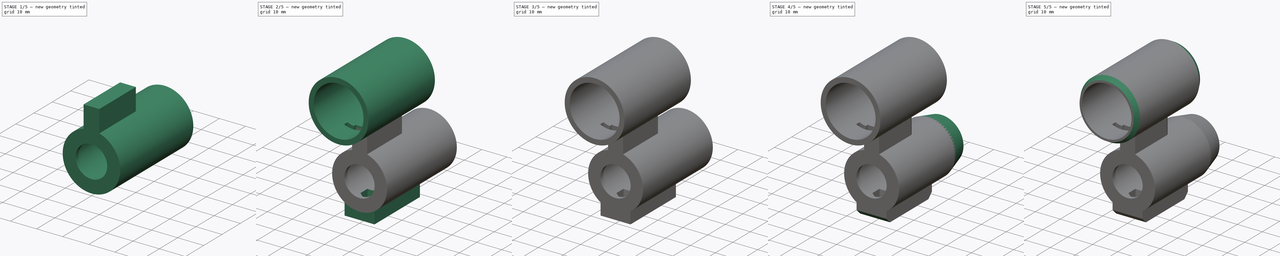
[diagram: build sequence overview — one tinted view per stage of 5, left to right]
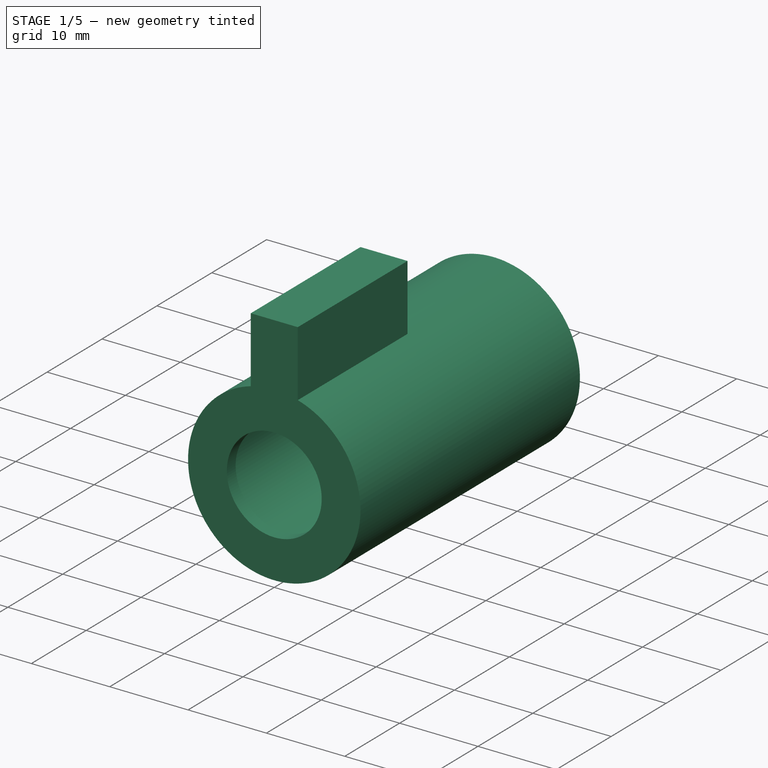
[diagram: stage 1 of 5 — iso view after this stage's code; geometry added in this stage tinted green]
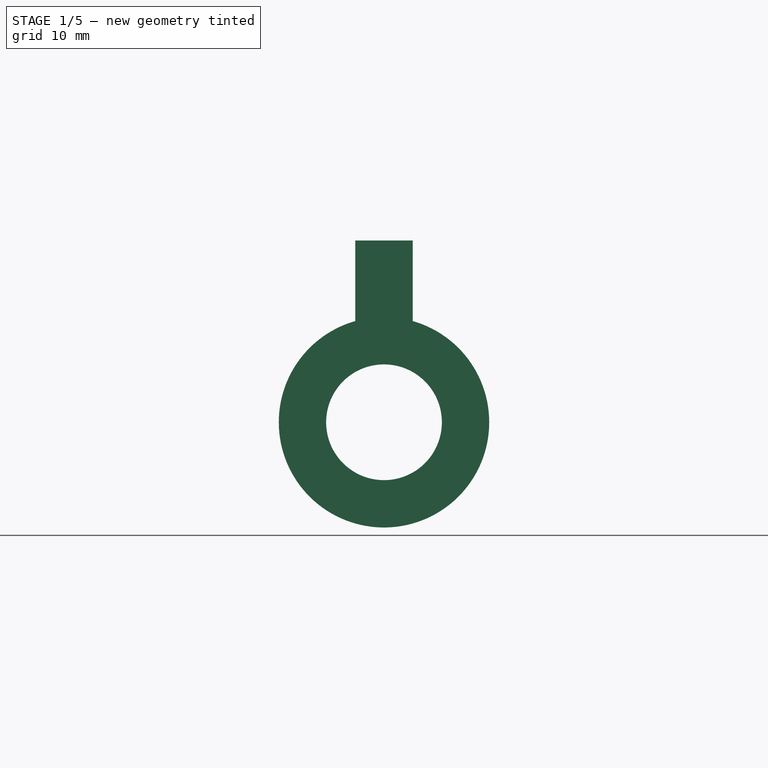
[diagram: stage 1 of 5 — front view after this stage's code; geometry added in this stage tinted green]
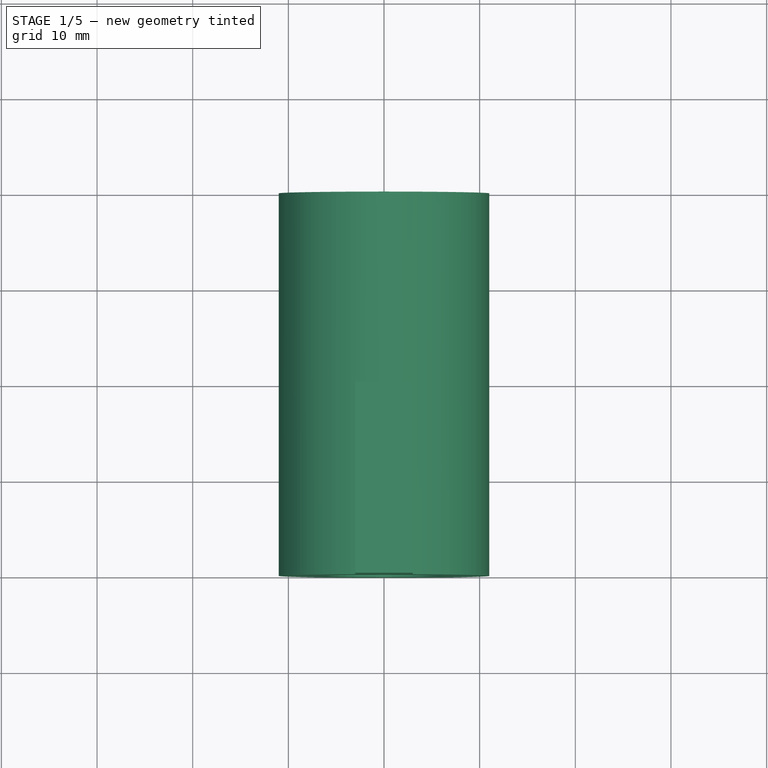
[diagram: stage 1 of 5 — top view after this stage's code; geometry added in this stage tinted green]
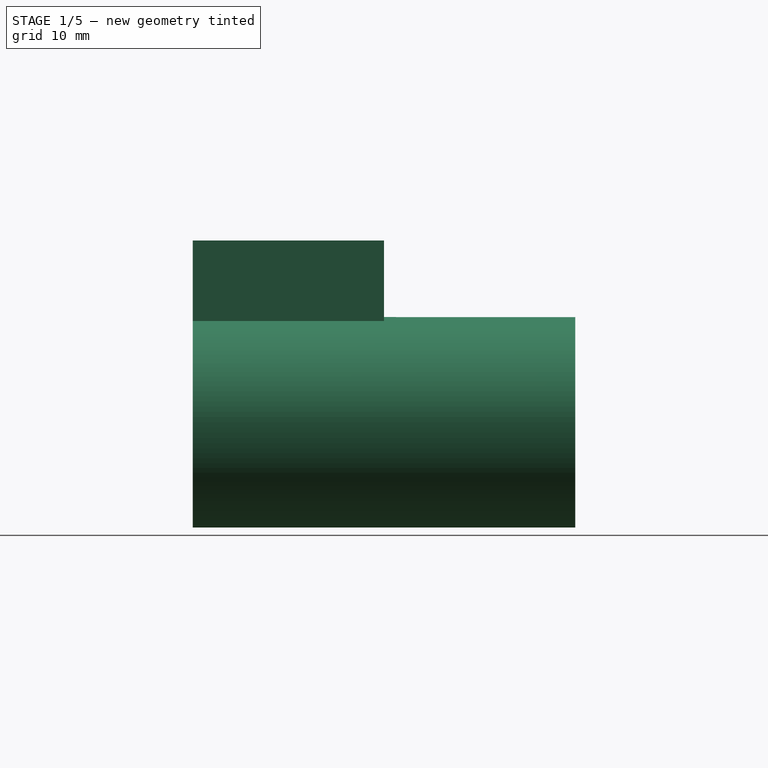
[diagram: stage 1 of 5 — right view after this stage's code; geometry added in this stage tinted green]
FCSTD DOCUMENT  (FreeCAD 0.20RUnknown)
Label: Mirino
License: All rights reserved
LicenseURL: http://en.wikipedia.org/wiki/All_rights_reserved
objects: Sketcher::SketchObject×10, PartDesign::Pad×7, PartDesign::Chamfer×6, PartDesign::Pocket×3, PartDesign::Fillet×1, PartDesign::Body×1
note: 45 computed .brp shape members not serialized (recipe doc carries the construction recipe); baked Part::Feature solids carry a one-line shape summary decoded from their .brp

FEATURE [Sketcher::SketchObject] Sketch  label="cerchio_12"
  FullyConstrained = true
  MapMode = 5
  Placement = pos=(0,0,0) rot=(1,0,0;1.5708rad)
  Support = -> [XZ_Plane]
  sketch-geometry (2):
    g0: Circle CenterX=0 CenterY=0 CenterZ=0 NormalX=0 NormalY=0 NormalZ=1 AngleXU=0 Radius=6.05
    g1: Circle CenterX=0 CenterY=0 CenterZ=0 NormalX=0 NormalY=0 NormalZ=1 AngleXU=0 Radius=8.25
  constraints (4):
    c: Coincident(g0,g-1)
    c: Diameter(g0) = 12.1
    c: Coincident(g1,g0)
    c: Diameter(g1) = 16.5
FEATURE [PartDesign::Pad] Pad  label="cerchio_013"
  Direction = (0,-1,2e-16)
  Length = 1.6
  Length2 = 10
  Placement = pos=(0,0,0) rot=(1,0,0;1.5708rad)
  Profile = -> Sketch
  ReferenceAxis = -> Sketch [N_Axis]
  Reversed = true
  Type = 0
FEATURE [Sketcher::SketchObject] Sketch001  label="cerchio_014"
  FullyConstrained = true
  MapMode = 5
  Placement = pos=(0,0,0) rot=(1,0,0;1.5708rad)
  Support = -> [XZ_Plane]
  sketch-geometry (2):
    g0: Circle CenterX=0 CenterY=0 CenterZ=0 NormalX=0 NormalY=0 NormalZ=1 AngleXU=0 Radius=8.075
    g1: Circle CenterX=0 CenterY=0 CenterZ=0 NormalX=0 NormalY=0 NormalZ=1 AngleXU=0 Radius=11
  constraints (4):
    c: Coincident(g0,g-1)
    c: Diameter(g0) = 16.15
    c: Coincident(g1,g0)
    c: Diameter(g1) = 22
FEATURE [PartDesign::Pad] Pad001  label="cerchio_16"
  BaseFeature = -> Pad
  Direction = (0,-1,2e-16)
  Length = 40
  Length2 = 10
  Placement = pos=(0,0,0) rot=(1,0,0;1.5708rad)
  Profile = -> Sketch001
  ReferenceAxis = -> Sketch001 [N_Axis]
  Reversed = true
  Type = 0
FEATURE [Sketcher::SketchObject] Sketch002  label="cerchio_sopra"
  FullyConstrained = true
  MapMode = 5
  Placement = pos=(0,0,0) rot=(1,0,0;1.5708rad)
  Support = -> [Pad001]
  sketch-geometry (2):
    g0: Circle CenterX=0 CenterY=30 CenterZ=0 NormalX=0 NormalY=0 NormalZ=1 AngleXU=0 Radius=10
    g1: Circle CenterX=0 CenterY=30 CenterZ=0 NormalX=0 NormalY=0 NormalZ=1 AngleXU=0 Radius=12
  constraints (5):
    c: PointOnObject(g0,g-2)
    c: Diameter(g0) = 20
    c: DistanceY(g-1,g0) = 30
    c: Coincident(g1,g0)
    c: Diameter(g1) = 24
FEATURE [Sketcher::SketchObject] Sketch003  label="supporto"
  FullyConstrained = true
  MapMode = 5
  Placement = pos=(0,0,0) rot=(1,0,0;1.5708rad)
  Support = -> [Pad001]
  sketch-geometry (4):
    g0: LineSegment StartX=-3 StartY=19 StartZ=0 EndX=3 EndY=19 EndZ=0
    g1: LineSegment StartX=3 StartY=19 StartZ=0 EndX=3 EndY=9 EndZ=0
    g2: LineSegment StartX=3 StartY=9 StartZ=0 EndX=-3 EndY=9 EndZ=0
    g3: LineSegment StartX=-3 StartY=9 StartZ=0 EndX=-3 EndY=19 EndZ=0
  constraints (12):
    c: Coincident(g0,g1)
    c: Coincident(g1,g2)
    c: Coincident(g2,g3)
    c: Coincident(g3,g0)
    c: Horizontal(g0)
    c: Horizontal(g2)
    c: Vertical(g1)
    c: Vertical(g3)
    c: DistanceX(g0,g0) = 6
    c: DistanceX(g0,g-1) = 3
    c: DistanceY(g1,g1) = 10
    c: DistanceY(g-1,g2) = 9
FEATURE [PartDesign::Pad] Pad002  label="supporto001"
  BaseFeature = -> Pad001
  Direction = (0,-1,2e-16)
  Length = 20
  Length2 = 10
  Placement = pos=(0,0,0) rot=(1,0,0;1.5708rad)
  Profile = -> Sketch003
  ReferenceAxis = -> Sketch003 [N_Axis]
  Reversed = true
  Type = 0
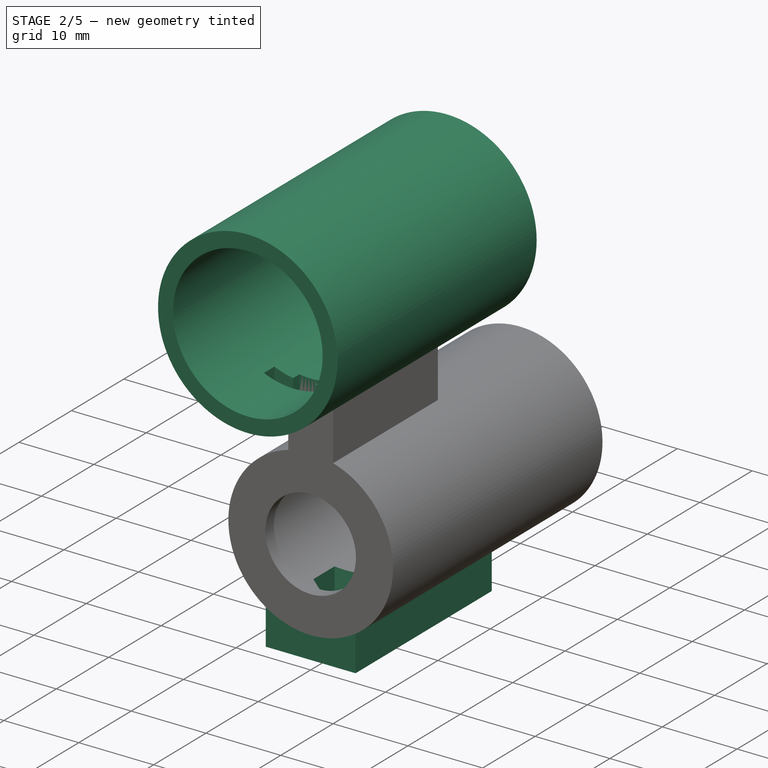
[diagram: stage 2 of 5 — iso view after this stage's code; geometry added in this stage tinted green]
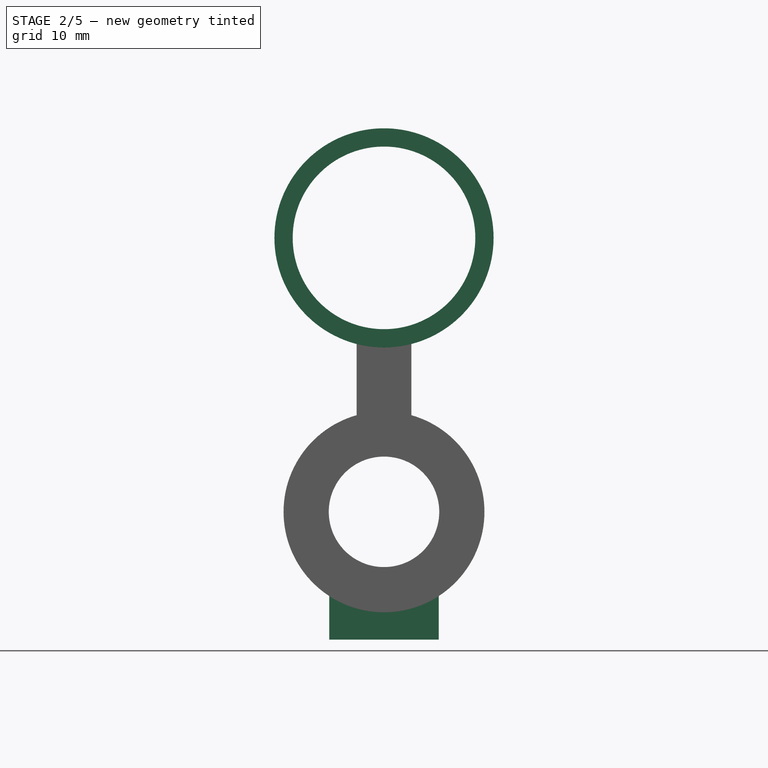
[diagram: stage 2 of 5 — front view after this stage's code; geometry added in this stage tinted green]
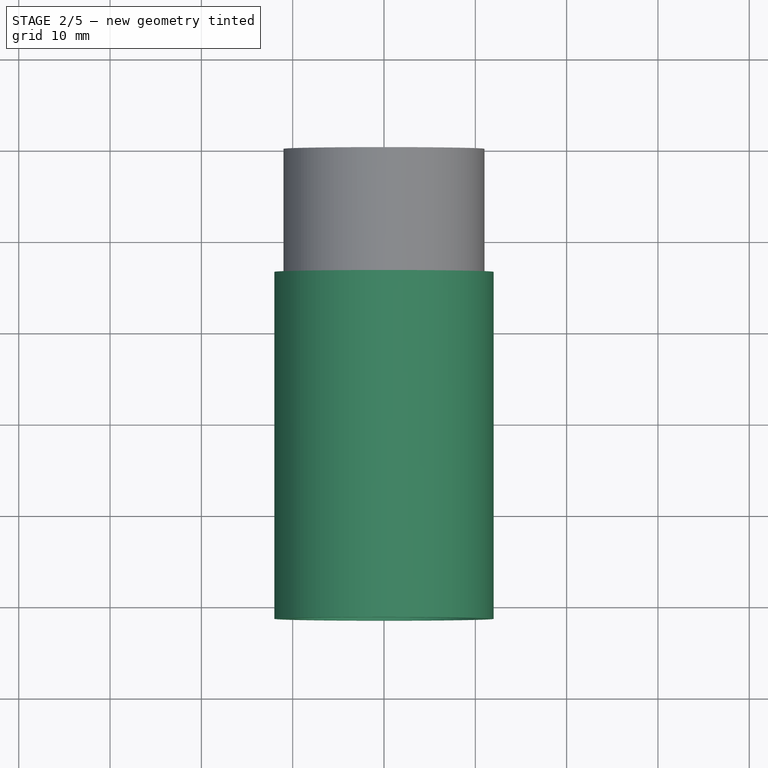
[diagram: stage 2 of 5 — top view after this stage's code; geometry added in this stage tinted green]
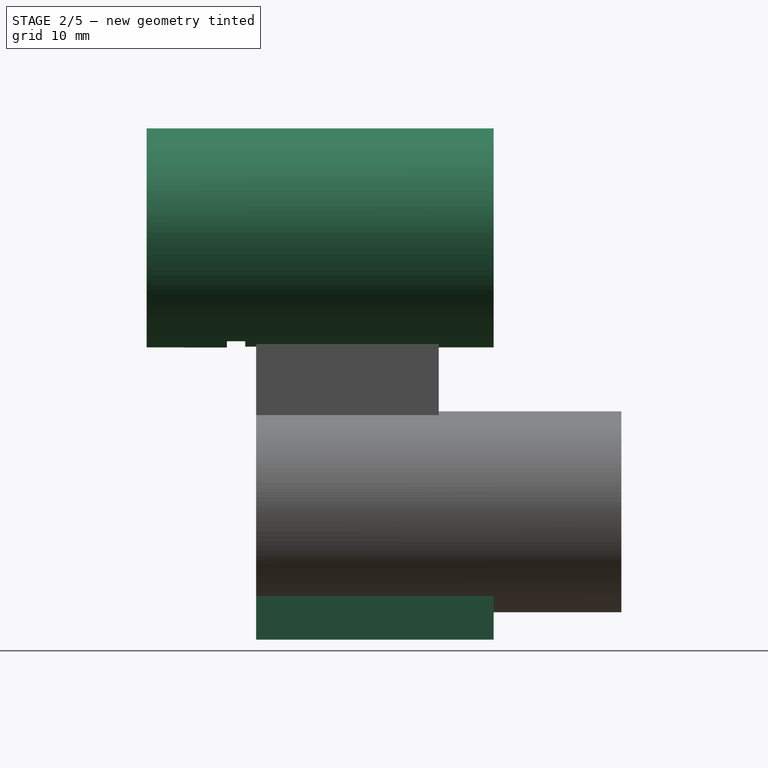
[diagram: stage 2 of 5 — right view after this stage's code; geometry added in this stage tinted green]
FEATURE [PartDesign::Pad] Pad003  label="cerchio_sopra001"
  BaseFeature = -> Pad002
  Direction = (0,-1,2e-16)
  Length = 12
  Length2 = 26
  Placement = pos=(0,0,0) rot=(1,0,0;1.5708rad)
  Profile = -> Sketch002
  ReferenceAxis = -> Sketch002 [N_Axis]
  Type = 4
FEATURE [Sketcher::SketchObject] Sketch004  label="fresatura"
  FullyConstrained = true
  MapMode = 5
  Support = -> [XY_Plane]
  sketch-geometry (8):
    g0: LineSegment StartX=-1.5 StartY=0 StartZ=0 EndX=1.5 EndY=0 EndZ=0
    g1: LineSegment StartX=1.5 StartY=0 StartZ=0 EndX=1.5 EndY=-1.2 EndZ=0
    g2: LineSegment StartX=-1.5 StartY=-1.2 StartZ=0 EndX=-1.5 EndY=0 EndZ=0
    g3: LineSegment StartX=4 StartY=-1.2 StartZ=0 EndX=4 EndY=-3.2 EndZ=0
    g4: LineSegment StartX=4 StartY=-3.2 StartZ=0 EndX=-4 EndY=-3.2 EndZ=0
    g5: LineSegment StartX=-4 StartY=-3.2 StartZ=0 EndX=-4 EndY=-1.2 EndZ=0
    g6: LineSegment StartX=-4 StartY=-1.2 StartZ=0 EndX=-1.5 EndY=-1.2 EndZ=0
    g7: LineSegment StartX=1.5 StartY=-1.2 StartZ=0 EndX=4 EndY=-1.2 EndZ=0
  constraints (24):
    c: Coincident(g0,g1)
    c: Coincident(g2,g0)
    c: Horizontal(g0)
    c: Vertical(g1)
    c: Vertical(g2)
    c: PointOnObject(g0,g-1)
    c: Coincident(g3,g4)
    c: Coincident(g4,g5)
    c: Horizontal(g4)
    c: Vertical(g3)
    c: Vertical(g5)
    c: Coincident(g6,g5)
    c: Coincident(g6,g2)
    c: Horizontal(g6)
    c: Coincident(g7,g1)
    c: Coincident(g7,g3)
    c: DistanceX(g0,g0) = 3
    c: DistanceY(g1,g1) = 1.2
    c: DistanceX(g4,g4) = 8
    c: Equal(g1,g2)
    c: Equal(g6,g7)
    c: DistanceY(g3,g3) = 2
    c: Horizontal(g7)
    c: DistanceX(g-1,g3) = 4
FEATURE [PartDesign::Pocket] Pocket  label="fresatura001"
  BaseFeature = -> Pad003
  Direction = (0,0,-1)
  Length = 26
  Length2 = 5
  Placement = pos=(0,0,0) rot=(1,0,0;1.5708rad)
  Profile = -> Sketch004
  ReferenceAxis = -> Sketch004 [N_Axis]
  Reversed = true
  Type = 0
FEATURE [Sketcher::SketchObject] Sketch005  label="supporto_dadi001"
  FullyConstrained = true
  MapMode = 5
  Placement = pos=(0,0,0) rot=(1,0,0;1.5708rad)
  Support = -> [Pocket]
  sketch-geometry (4):
    g0: LineSegment StartX=-6 StartY=-9 StartZ=0 EndX=6 EndY=-9 EndZ=0
    g1: LineSegment StartX=6 StartY=-9 StartZ=0 EndX=6 EndY=-14 EndZ=0
    g2: LineSegment StartX=6 StartY=-14 StartZ=0 EndX=-6 EndY=-14 EndZ=0
    g3: LineSegment StartX=-6 StartY=-14 StartZ=0 EndX=-6 EndY=-9 EndZ=0
  constraints (12):
    c: Coincident(g0,g1)
    c: Coincident(g1,g2)
    c: Coincident(g2,g3)
    c: Coincident(g3,g0)
    c: Horizontal(g0)
    c: Horizontal(g2)
    c: Vertical(g1)
    c: Vertical(g3)
    c: DistanceX(g0,g0) = 12
    c: DistanceY(g1,g1) = 5
    c: DistanceY(g0,g-1) = 9
    c: DistanceX(g-1,g0) = 6
FEATURE [PartDesign::Pad] Pad004  label="supporto_dadi"
  BaseFeature = -> Pocket
  Direction = (0,-1,2e-16)
  Length = 26
  Length2 = 10
  Placement = pos=(0,0,0) rot=(1,0,0;1.5708rad)
  Profile = -> Sketch005
  ReferenceAxis = -> Sketch005 [N_Axis]
  Reversed = true
  Type = 0
FEATURE [Sketcher::SketchObject] Sketch006  label="dado_1"
  FullyConstrained = true
  MapMode = 5
  Placement = pos=(0,-3.1e-15,-14) rot=(1,0,0;3.14159rad)
  Support = -> [Pad004]
  sketch-geometry (7):
    g0: LineSegment StartX=3.5 StartY=-9.56218 StartZ=0 EndX=3.5 EndY=-5.52073 EndZ=0
    g1: LineSegment StartX=3.5 StartY=-5.52073 StartZ=0 EndX=0 EndY=-3.5 EndZ=0
    g2: LineSegment StartX=0 StartY=-3.5 StartZ=0 EndX=-3.5 EndY=-5.52073 EndZ=0
    g3: LineSegment StartX=-3.5 StartY=-5.52073 StartZ=0 EndX=-3.5 EndY=-9.56218 EndZ=0
    g4: LineSegment StartX=-3.5 StartY=-9.56218 StartZ=0 EndX=0 EndY=-11.5829 EndZ=0
    g5: LineSegment StartX=0 StartY=-11.5829 StartZ=0 EndX=3.5 EndY=-9.56218 EndZ=0
    g6: Circle CenterX=0 CenterY=-7.54145 CenterZ=0 NormalX=0 NormalY=0 NormalZ=1 AngleXU=0 Radius=4.04145
  constraints (17):
    c: Coincident(g0,g1)
    c: Coincident(g1,g2)
    c: Coincident(g2,g3)
    c: Coincident(g3,g4)
    c: Coincident(g4,g5)
    c: Coincident(g5,g0)
    c: Equal(g0, g1-g5) x5
    c: PointOnObject(g0,g6)
    c: PointOnObject(g1,g6)
    c: PointOnObject(g2,g6)
    c: PointOnObject(g3,g6)
    c: PointOnObject(g4,g6)
    c: PointOnObject(g5,g6)
    c: PointOnObject(g6,g-2)
    c: Vertical(g0)
    c: DistanceY(g1,g-1) = 3.5
    c: DistanceX(g-1,g0) = 3.5
FEATURE [PartDesign::Pocket] Pocket001  label="dado_002"
  BaseFeature = -> Pad004
  Direction = (0,2e-16,1)
  Length = 8
  Length2 = 5
  Placement = pos=(0,0,0) rot=(1,0,0;1.5708rad)
  Profile = -> Sketch006
  ReferenceAxis = -> Sketch006 [N_Axis]
  Type = 0
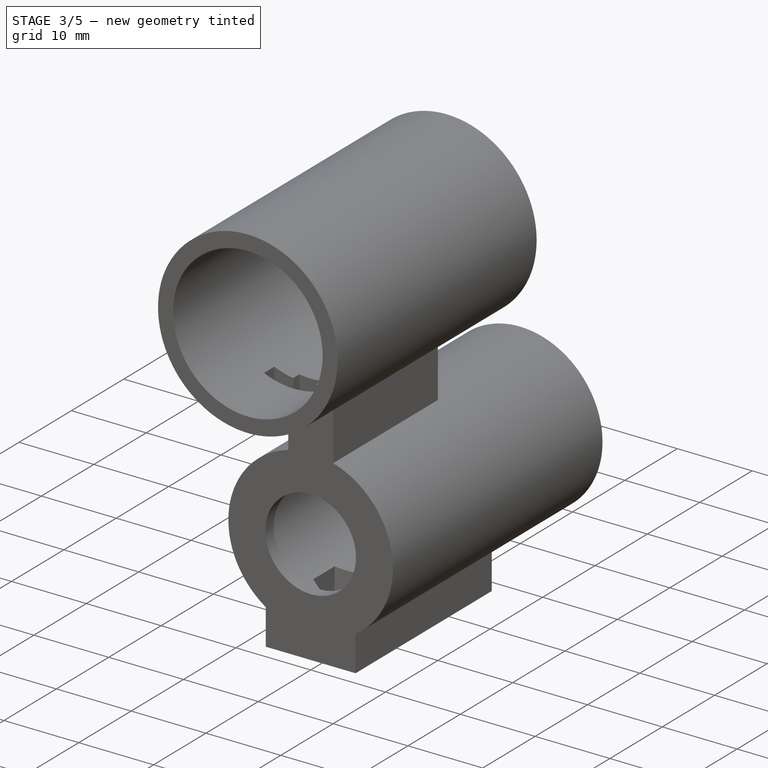
[diagram: stage 3 of 5 — iso view after this stage's code; geometry added in this stage tinted green]
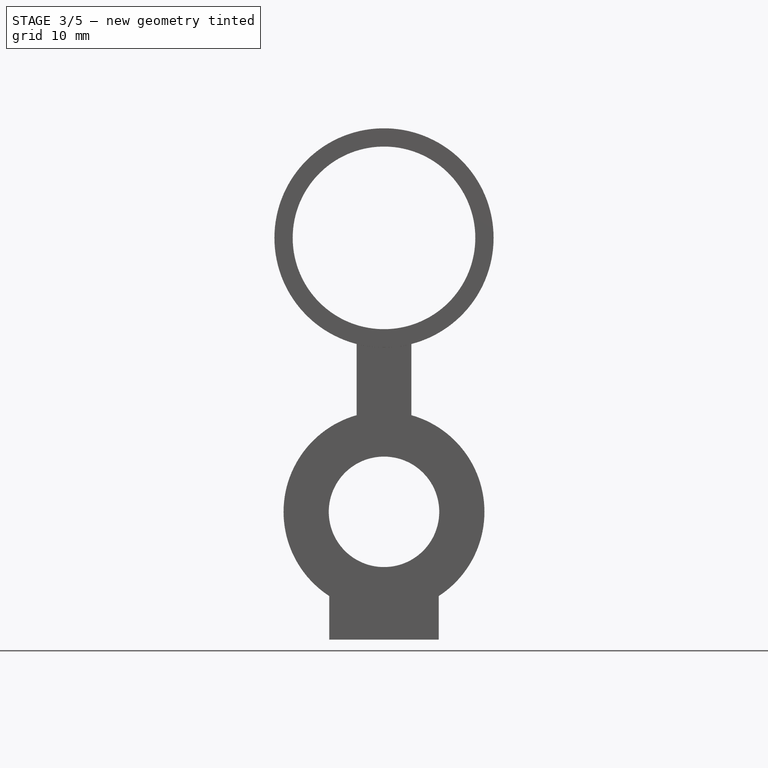
[diagram: stage 3 of 5 — front view after this stage's code; geometry added in this stage tinted green]
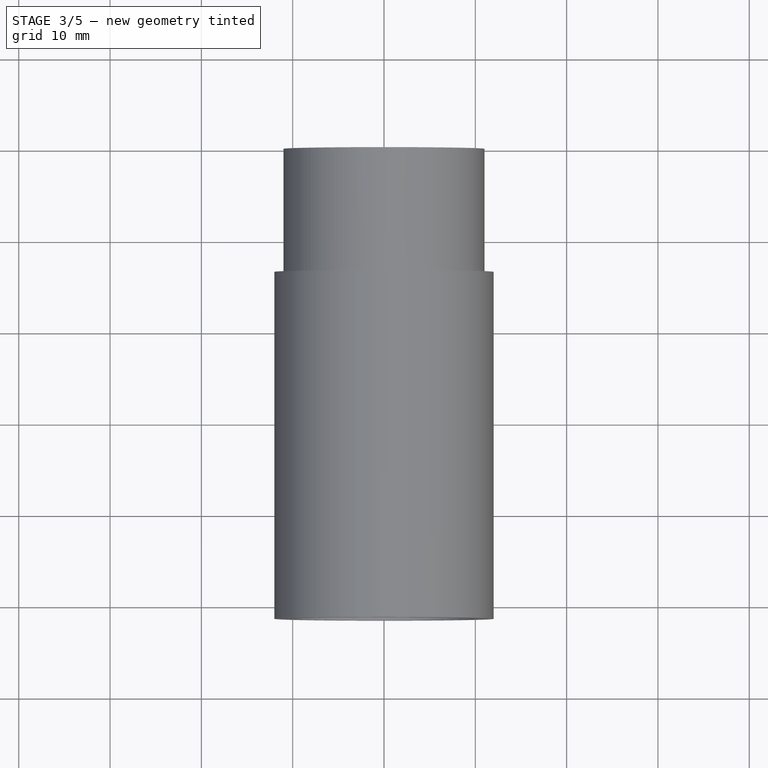
[diagram: stage 3 of 5 — top view after this stage's code; geometry added in this stage tinted green]
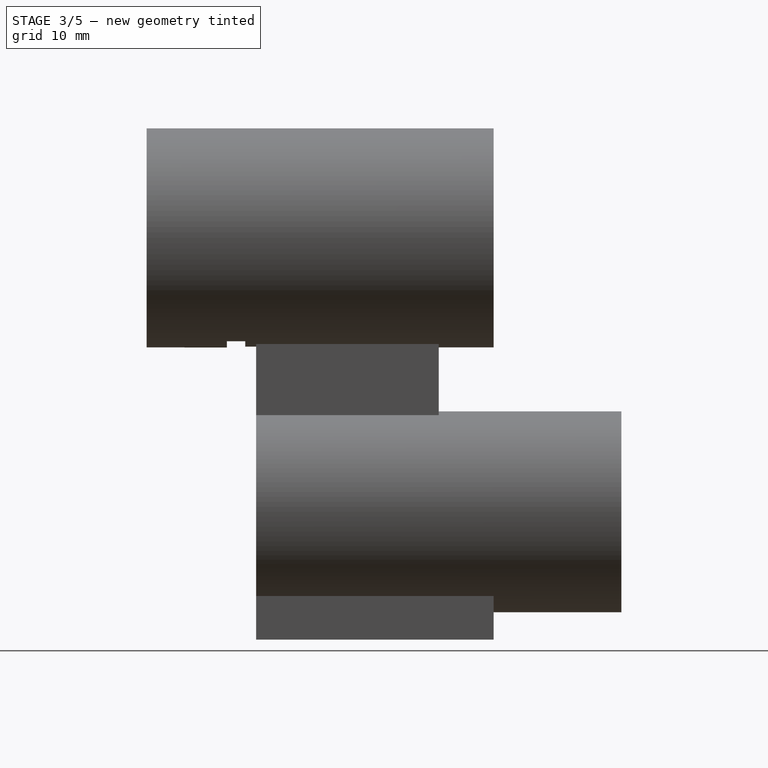
[diagram: stage 3 of 5 — right view after this stage's code; geometry added in this stage tinted green]
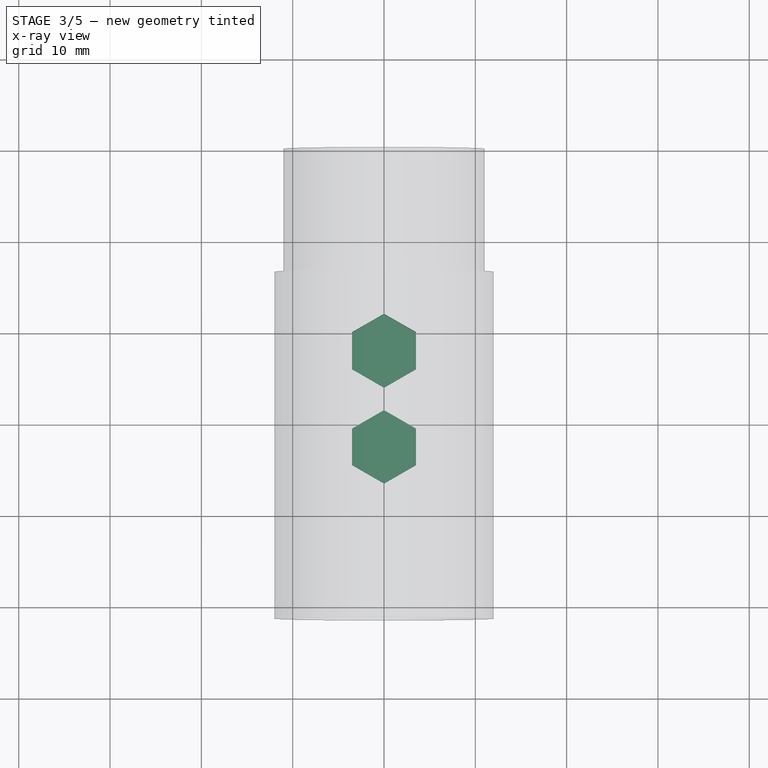
[diagram: stage 3 of 5 — x-ray composite at the top view; earlier geometry ghosted, this stage's added geometry solid]
FEATURE [Sketcher::SketchObject] Sketch007  label="dado_003"
  FullyConstrained = true
  MapMode = 5
  Placement = pos=(0,-3.1e-15,-14) rot=(1,0,0;3.14159rad)
  Support = -> [Pocket001]
  sketch-geometry (7):
    g0: LineSegment StartX=3.5 StartY=-20.0622 StartZ=0 EndX=3.5 EndY=-16.0207 EndZ=0
    g1: LineSegment StartX=3.5 StartY=-16.0207 StartZ=0 EndX=1.69793e-11 EndY=-14 EndZ=0
    g2: LineSegment StartX=1.69793e-11 StartY=-14 StartZ=0 EndX=-3.5 EndY=-16.0207 EndZ=0
    g3: LineSegment StartX=-3.5 StartY=-16.0207 StartZ=0 EndX=-3.5 EndY=-20.0622 EndZ=0
    g4: LineSegment StartX=-3.5 StartY=-20.0622 StartZ=0 EndX=1.69802e-11 EndY=-22.0829 EndZ=0
    g5: LineSegment StartX=1.69802e-11 StartY=-22.0829 StartZ=0 EndX=3.5 EndY=-20.0622 EndZ=0
    g6: Circle CenterX=0 CenterY=-18.0415 CenterZ=0 NormalX=0 NormalY=0 NormalZ=1 AngleXU=0 Radius=4.04145
  constraints (17):
    c: Coincident(g0,g1)
    c: Coincident(g1,g2)
    c: Coincident(g2,g3)
    c: Coincident(g3,g4)
    c: Coincident(g4,g5)
    c: Coincident(g5,g0)
    c: Equal(g0, g1-g5) x5
    c: PointOnObject(g0,g6)
    c: PointOnObject(g1,g6)
    c: PointOnObject(g2,g6)
    c: PointOnObject(g3,g6)
    c: PointOnObject(g4,g6)
    c: PointOnObject(g5,g6)
    c: PointOnObject(g6,g-2)
    c: Vertical(g0)
    c: DistanceY(g1,g-1) = 14
    c: DistanceX(g-1,g0) = 3.5
FEATURE [PartDesign::Pocket] Pocket002  label="dado_2"
  BaseFeature = -> Pocket001
  Direction = (0,2e-16,1)
  Length = 8
  Length2 = 5
  Placement = pos=(0,0,0) rot=(1,0,0;1.5708rad)
  Profile = -> Sketch007
  ReferenceAxis = -> Sketch007 [N_Axis]
  Type = 0
FEATURE [Sketcher::SketchObject] Sketch008  label="tappo_dado_1"
  FullyConstrained = true
  MapMode = 5
  Placement = pos=(0,-3.1e-15,-14) rot=(1,0,0;3.14159rad)
  Support = -> [Pocket002]
  sketch-geometry (1):
    g0: Circle CenterX=0 CenterY=-7.5 CenterZ=0 NormalX=0 NormalY=0 NormalZ=1 AngleXU=0 Radius=5
  constraints (3):
    c: PointOnObject(g0,g-2)
    c: Diameter(g0) = 10
    c: DistanceY(g0,g-1) = 7.5
FEATURE [PartDesign::Pad] Pad005  label="tappo_dado"
  BaseFeature = -> Pocket002
  Direction = (0,-2e-16,-1)
  Length = 2.7
  Length2 = 10
  Placement = pos=(0,0,0) rot=(1,0,0;1.5708rad)
  Profile = -> Sketch008
  ReferenceAxis = -> Sketch008 [N_Axis]
  Reversed = true
  Type = 0
FEATURE [Sketcher::SketchObject] Sketch009  label="tappo_dado002"
  FullyConstrained = true
  MapMode = 5
  Placement = pos=(0,-3.1e-15,-14) rot=(1,0,0;3.14159rad)
  Support = -> [Pad005]
  sketch-geometry (1):
    g0: Circle CenterX=0 CenterY=-18 CenterZ=0 NormalX=0 NormalY=0 NormalZ=1 AngleXU=0 Radius=5
  constraints (3):
    c: PointOnObject(g0,g-2)
    c: Diameter(g0) = 10
    c: DistanceY(g0,g-1) = 18
FEATURE [PartDesign::Pad] Pad006  label="tappo_dado001"
  BaseFeature = -> Pad005
  Direction = (0,-2e-16,-1)
  Length = 2.7
  Length2 = 10
  Placement = pos=(0,0,0) rot=(1,0,0;1.5708rad)
  Profile = -> Sketch009
  ReferenceAxis = -> Sketch009 [N_Axis]
  Reversed = true
  Type = 0
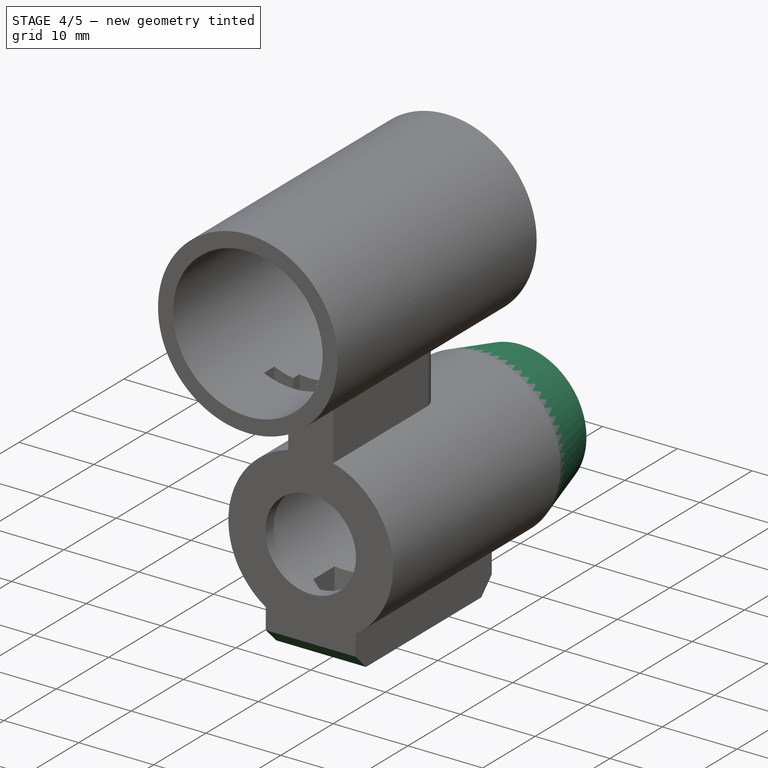
[diagram: stage 4 of 5 — iso view after this stage's code; geometry added in this stage tinted green]
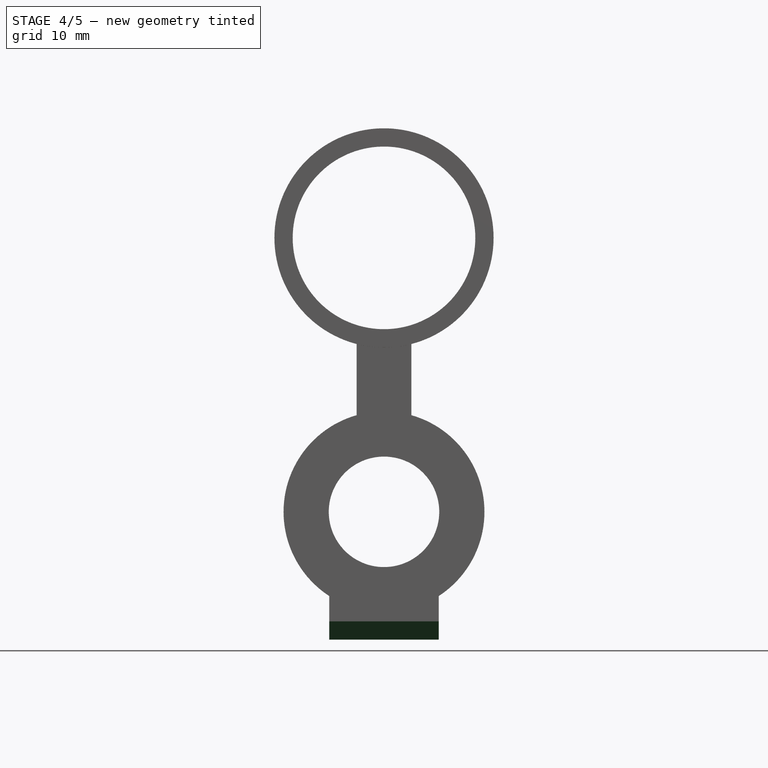
[diagram: stage 4 of 5 — front view after this stage's code; geometry added in this stage tinted green]
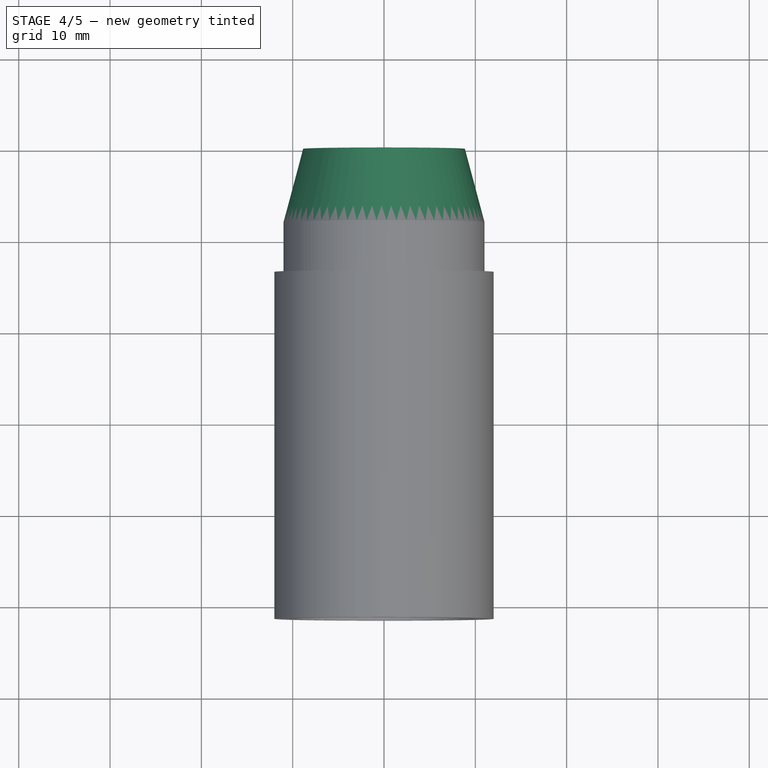
[diagram: stage 4 of 5 — top view after this stage's code; geometry added in this stage tinted green]
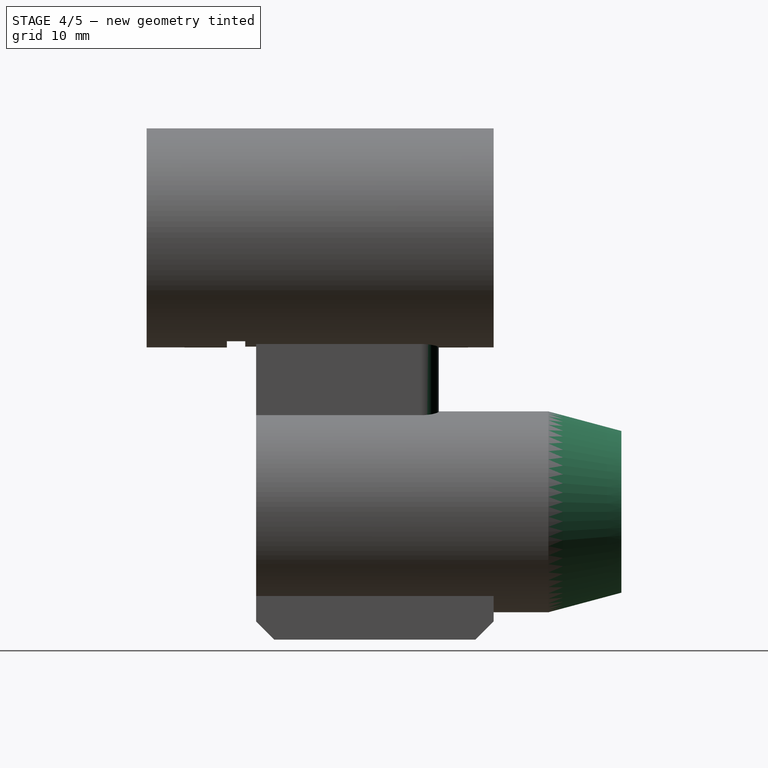
[diagram: stage 4 of 5 — right view after this stage's code; geometry added in this stage tinted green]
FEATURE [PartDesign::Chamfer] Chamfer  label="smusso_16"
  Angle = 15
  Base = -> Pad006 [Edge26]
  BaseFeature = -> Pad006
  ChamferType = 2
  FlipDirection = false
  Placement = pos=(0,0,0) rot=(1,0,0;1.5708rad)
  Size = 8
  Size2 = 1
  SupportTransform = false
  UseAllEdges = false
FEATURE [PartDesign::Chamfer] Chamfer001  label="smusso_supp_dadi001"
  Angle = 45
  Base = -> Chamfer [Edge29]
  BaseFeature = -> Chamfer
  ChamferType = 0
  FlipDirection = false
  Placement = pos=(0,0,0) rot=(1,0,0;1.5708rad)
  Size = 2
  Size2 = 1
  SupportTransform = false
  UseAllEdges = false
FEATURE [PartDesign::Chamfer] Chamfer002  label="smusso_supp_dadi"
  Angle = 45
  Base = -> Chamfer001 [Edge7]
  BaseFeature = -> Chamfer001
  ChamferType = 0
  FlipDirection = false
  Placement = pos=(0,0,0) rot=(1,0,0;1.5708rad)
  Size = 2
  Size2 = 1
  SupportTransform = false
  UseAllEdges = false
FEATURE [PartDesign::Fillet] Fillet  label="raccordo_supporto"
  Base = -> Chamfer002 [Edge55,Edge58]
  BaseFeature = -> Chamfer002
  Placement = pos=(0,0,0) rot=(1,0,0;1.5708rad)
  Radius = 2
  SupportTransform = false
  UseAllEdges = false
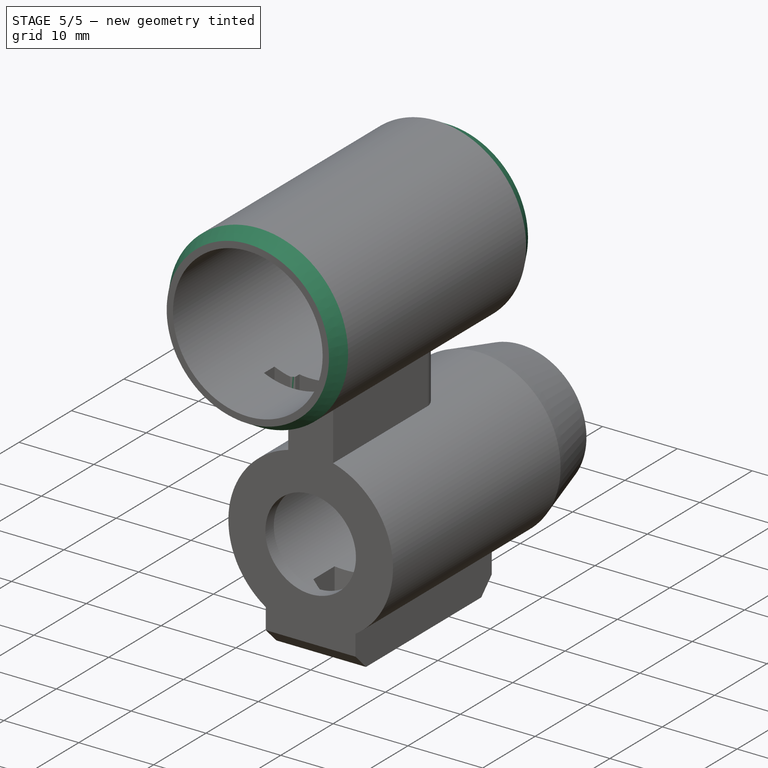
[diagram: stage 5 of 5 — iso view after this stage's code; geometry added in this stage tinted green]
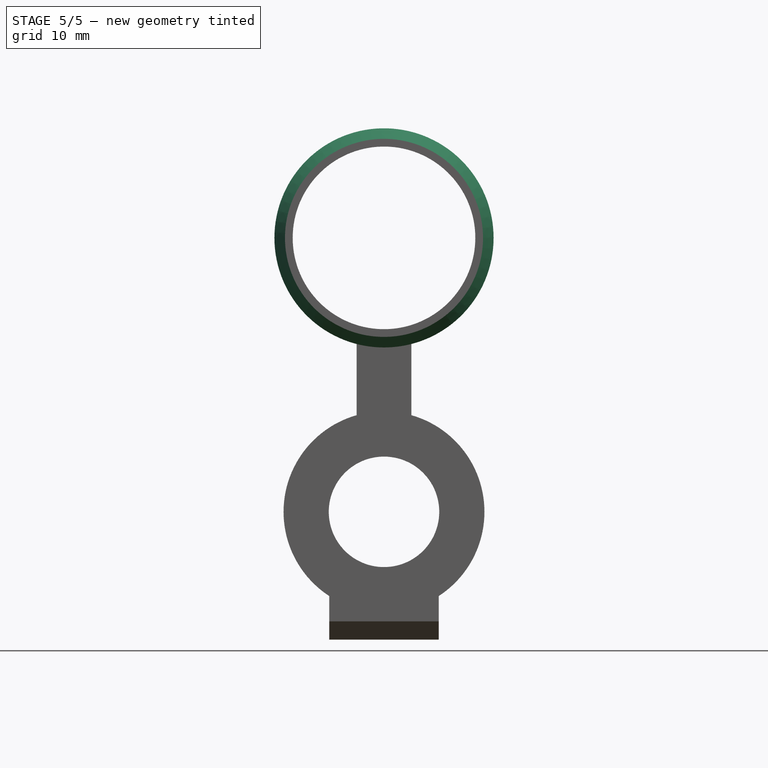
[diagram: stage 5 of 5 — front view after this stage's code; geometry added in this stage tinted green]
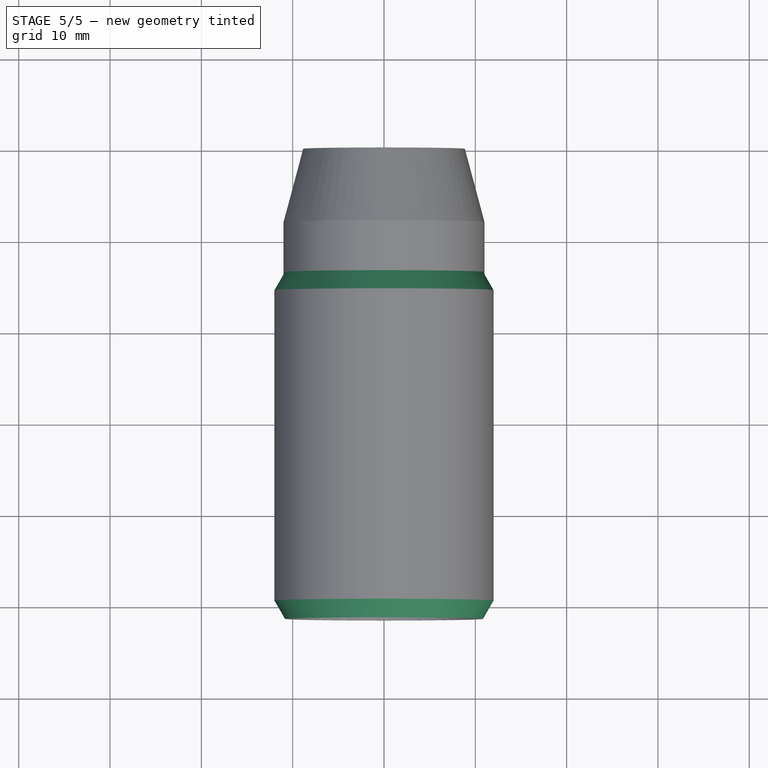
[diagram: stage 5 of 5 — top view after this stage's code; geometry added in this stage tinted green]
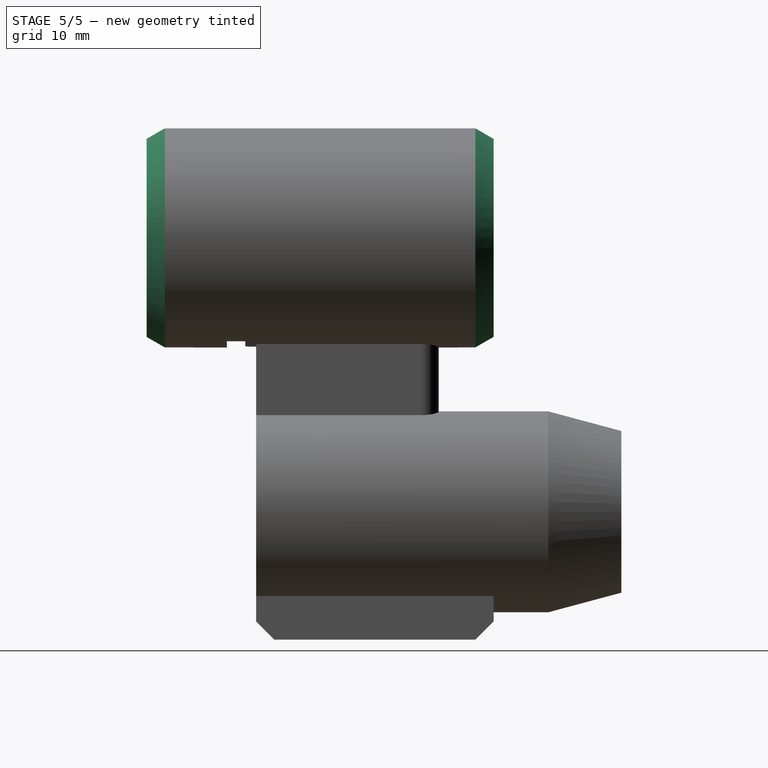
[diagram: stage 5 of 5 — right view after this stage's code; geometry added in this stage tinted green]
FEATURE [PartDesign::Chamfer] Chamfer003  label="smusso_foglietta"
  Angle = 45
  Base = -> Fillet [Edge82,Edge93]
  BaseFeature = -> Fillet
  ChamferType = 0
  FlipDirection = false
  Placement = pos=(0,0,0) rot=(1,0,0;1.5708rad)
  Size = 0.4
  Size2 = 1
  SupportTransform = false
  UseAllEdges = false
FEATURE [PartDesign::Chamfer] Chamfer004
  Angle = 30
  Base = -> Chamfer003 [Edge19]
  BaseFeature = -> Chamfer003
  ChamferType = 2
  FlipDirection = false
  Placement = pos=(0,0,0) rot=(1,0,0;1.5708rad)
  Size = 2
  Size2 = 1
  SupportTransform = false
  UseAllEdges = false
FEATURE [PartDesign::Chamfer] Chamfer005
  Angle = 30
  Base = -> Chamfer004 [Edge3]
  BaseFeature = -> Chamfer004
  ChamferType = 2
  FlipDirection = false
  Placement = pos=(0,0,0) rot=(1,0,0;1.5708rad)
  Size = 2
  Size2 = 1
  SupportTransform = false
  UseAllEdges = false
FEATURE [PartDesign::Body] Body
  Group = -> [Sketch,Pad,Sketch001,Pad001,Sketch002,Sketch003,Pad002,Pad003,Sketch004,Pocket,Sketch005,Pad004,Sketch006,Pocket001,Sketch007,Pocket002,Sketch008,Pad005,Sketch009,Pad006,Chamfer,Chamfer001,Chamfer002,Fillet,Chamfer003,Chamfer004,Chamfer005]
  Origin = -> Origin
  Tip = -> Chamfer005
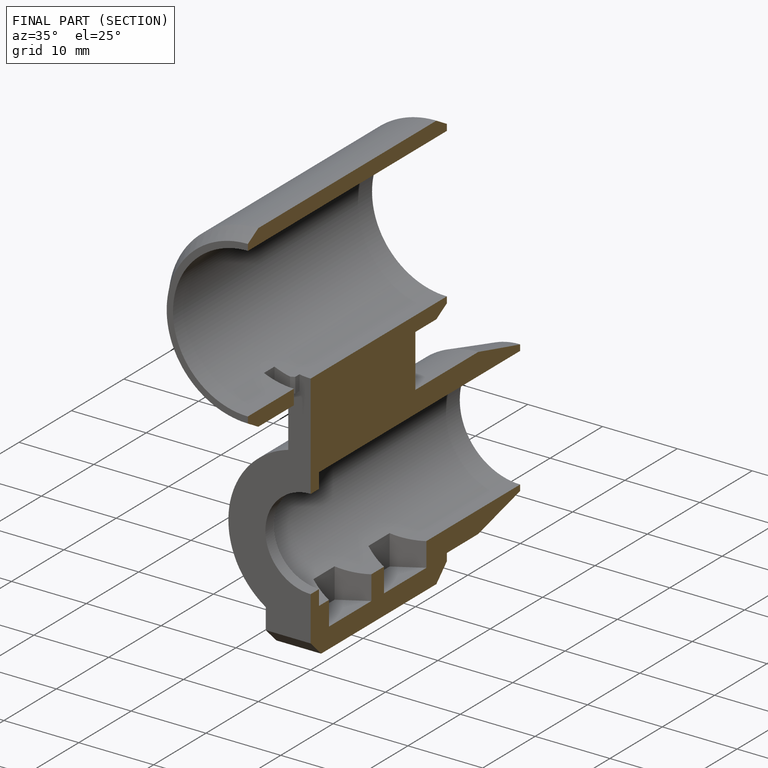
[diagram: finished part — half-section view (interior)]
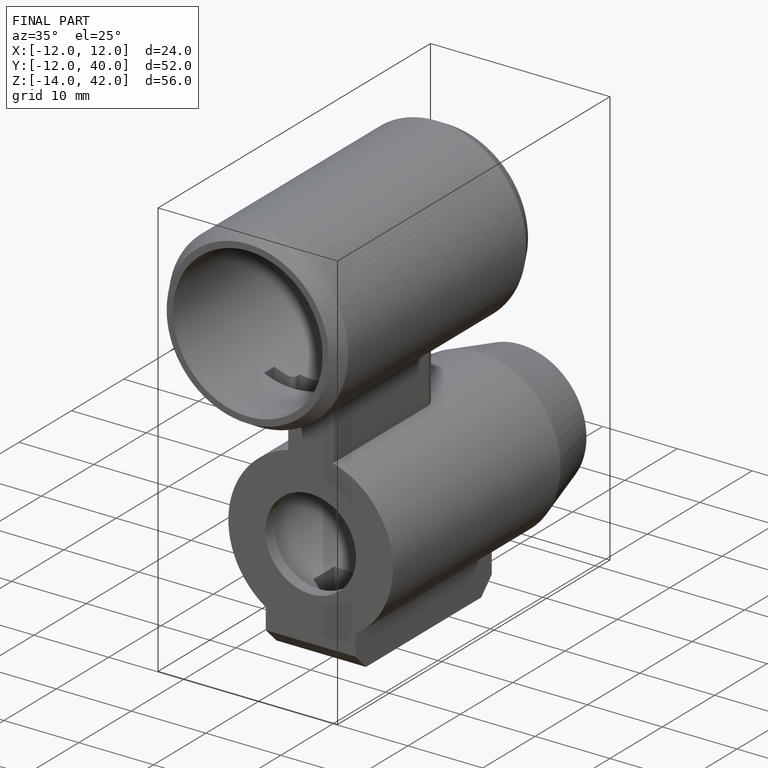
[diagram: finished part — iso view with bounding-box wireframe]
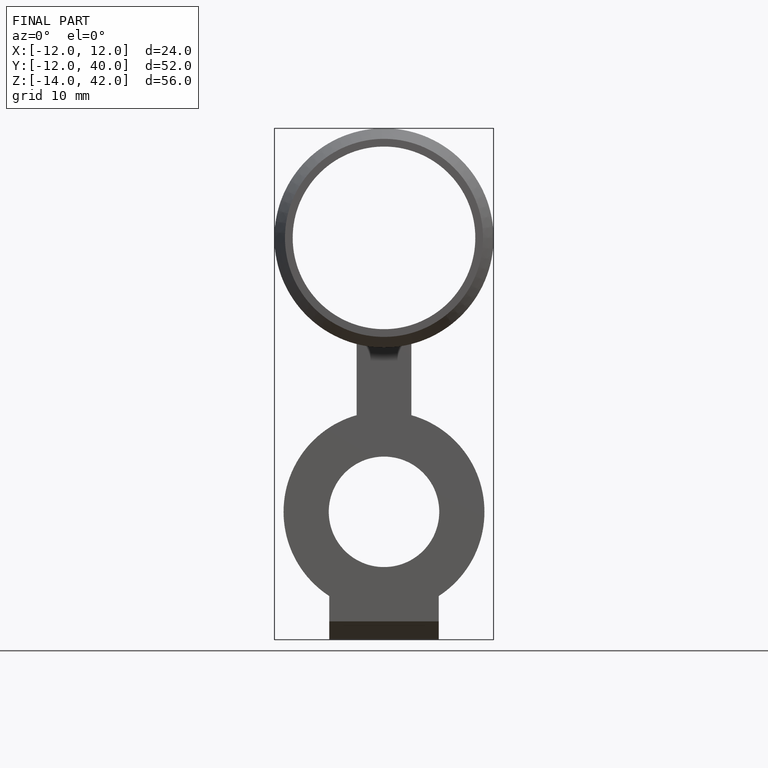
[diagram: finished part — front view with bounding-box wireframe]
